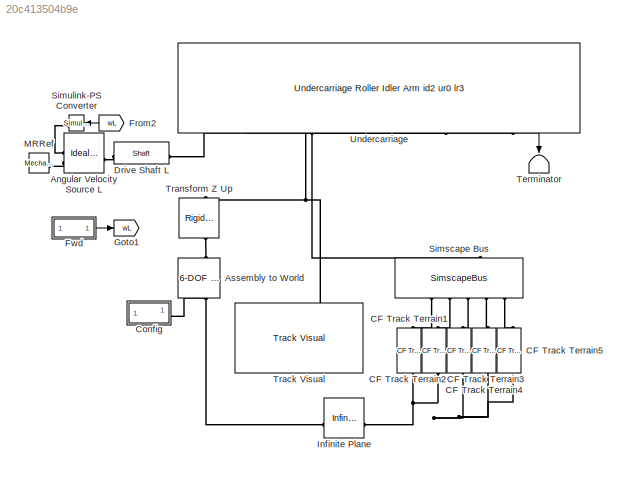
MODEL slx_20c413504b9e
KIND model
CONFIG AbsTol = 1e-3
CONFIG EnableMultiTasking = on
CONFIG SolverName = VariableStepAuto
BLOCK [Reference] Angular Velocity Source L  REF=fl_lib/Mechanical/Mechanical Sources/Ideal Angular
Velocity Source
  SourceBlock = fl_lib/Mechanical/Mechanical Sources/Ideal Angular\nVelocity Source
  SourceType = Ideal Angular\nVelocity Source
BLOCK [Reference] Assembly to World  REF=sm_lib/Joints/6-DOF Joint
  NameLocation = right
  SourceBlock = sm_lib/Joints/6-DOF Joint
  SourceType = 6-DOF Joint
BLOCK [Reference] CF Track Terrain1  REF=sm_trackV_lib_terrain_contact_elem/CF Track Terrain
  SourceBlock = sm_trackV_lib_terrain_contact_elem/CF Track Terrain
  SourceType = Contact Force, Track Segment to Terrain
BLOCK [Reference] CF Track Terrain2  REF=sm_trackV_lib_terrain_contact_elem/CF Track Terrain
  SourceBlock = sm_trackV_lib_terrain_contact_elem/CF Track Terrain
  SourceType = Contact Force, Track Segment to Terrain
BLOCK [Reference] CF Track Terrain3  REF=sm_trackV_lib_terrain_contact_elem/CF Track Terrain
  SourceBlock = sm_trackV_lib_terrain_contact_elem/CF Track Terrain
  SourceType = Contact Force, Track Segment to Terrain
BLOCK [Reference] CF Track Terrain4  REF=sm_trackV_lib_terrain_contact_elem/CF Track Terrain
  SourceBlock = sm_trackV_lib_terrain_contact_elem/CF Track Terrain
  SourceType = Contact Force, Track Segment to Terrain
BLOCK [Reference] CF Track Terrain5  REF=sm_trackV_lib_terrain_contact_elem/CF Track Terrain
  SourceBlock = sm_trackV_lib_terrain_contact_elem/CF Track Terrain
  SourceType = Contact Force, Track Segment to Terrain
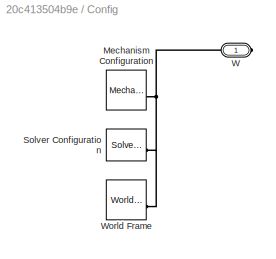
BLOCK [SubSystem] Config
BLOCK [Reference] Config/Mechanism Configuration  REF=sm_lib/Utilities/Mechanism
Configuration
  SourceBlock = sm_lib/Utilities/Mechanism\nConfiguration
  SourceType = Mechanism\nConfiguration
BLOCK [Reference] Config/Solver Configuration  REF=nesl_utility/Solver
Configuration
  SourceBlock = nesl_utility/Solver\nConfiguration
  SourceType = Solver\nConfiguration
BLOCK [PMIOPort] Config/W
  Side = Right
BLOCK [Reference] Config/World Frame  REF=sm_lib/Frames and
Transforms/World Frame
  SourceBlock = sm_lib/Frames and\nTransforms/World Frame
  SourceType = World Frame
BLOCK [Reference] Drive Shaft L  REF=sm_trackV_lib_chain_underc_elem/Shaft
  SourceBlock = sm_trackV_lib_chain_underc_elem/Shaft
  SourceType = Driveshaft
BLOCK [From] From2
  GotoTag = wL
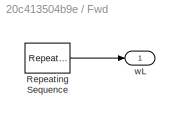
BLOCK [SubSystem] Fwd
  VariantControl = Fwd
BLOCK [Reference] Fwd/Repeating Sequence  REF=simulink/Sources/Repeating
Sequence
  SourceBlock = simulink/Sources/Repeating\nSequence
  SourceType = Repeating table
BLOCK [Outport] Fwd/wL
BLOCK [Goto] Goto1
  GotoTag = wL
BLOCK [Reference] Infinite Plane  REF=sm_lib/Curves and Surfaces/Infinite Plane
  SourceBlock = sm_lib/Curves and Surfaces/Infinite Plane
  SourceType = Infinite Plane
BLOCK [Reference] MRRef  REF=fl_lib/Mechanical/Rotational Elements/Mechanical
Rotational Reference
  SourceBlock = fl_lib/Mechanical/Rotational Elements/Mechanical\nRotational Reference
  SourceType = Mechanical\nRotational Reference
BLOCK [SimscapeBus] Simscape Bus
  ConnectionType = Bus: CBO_Roller5
  HierarchyStrings = P1;P2;P3;P4;P5
  NameLocation = right
BLOCK [Reference] Simulink-PS Converter  REF=nesl_utility/Simulink-PS
Converter
  NameLocation = top
  SourceBlock = nesl_utility/Simulink-PS\nConverter
  SourceType = Simulink-PS\nConverter
BLOCK [Terminator] Terminator
  NameLocation = left
BLOCK [Reference] Track Visual  REF=sm_rollerV_lib_underc_elem/Track Visual
  SourceBlock = sm_rollerV_lib_underc_elem/Track Visual
  SourceType = Track Mass and Visual Element
BLOCK [Reference] Transform Z Up  REF=sm_lib/Frames and
Transforms/Rigid
Transform
  NameLocation = right
  SourceBlock = sm_lib/Frames and\nTransforms/Rigid\nTransform
  SourceType = Rigid\nTransform
BLOCK [Reference] Undercarriage  REF=sm_rollerV_lib_underc_idlerArm_i2u0l3/Undercarriage Roller
Idler Arm
id2 ur0 lr3
  NameLocation = right
  SourceBlock = sm_rollerV_lib_underc_idlerArm_i2u0l3/Undercarriage Roller\nIdler Arm\nid2 ur0 lr3
  SourceType = Undercarriage with Roller Ground Contact (Point Cloud)
LINE From2:1 -> Simulink-PS Converter:1
LINE Fwd/Repeating Sequence:1 -> Fwd/wL:1
LINE Fwd:1 -> Goto1:1
LINE Undercarriage:1 -> Terminator:1
PLINE Angular Velocity Source L:LConn1 -- Drive Shaft L:LConn1
PLINE Angular Velocity Source L:RConn1 -- Simulink-PS Converter:RConn1
PLINE Angular Velocity Source L:RConn2 -- MRRef:LConn1
PNET net1: Assembly to World:LConn1 -- Config:RConn1 -- Infinite Plane:LConn1
PLINE Assembly to World:RConn1 -- Transform Z Up:LConn1
PNET net2: CF Track Terrain1:LConn1 -- CF Track Terrain2:LConn1 -- CF Track Terrain3:LConn1 -- CF Track Terrain4:LConn1 -- CF Track Terrain5:LConn1 -- Infinite Plane:RConn1
PLINE CF Track Terrain1:RConn1 -- Simscape Bus:LConn1
PLINE CF Track Terrain2:RConn1 -- Simscape Bus:LConn2
PLINE CF Track Terrain3:RConn1 -- Simscape Bus:LConn3
PLINE CF Track Terrain4:RConn1 -- Simscape Bus:LConn4
PLINE CF Track Terrain5:RConn1 -- Simscape Bus:LConn5
PNET net3: Config/Mechanism Configuration:RConn1 -- Config/Solver Configuration:RConn1 -- Config/W:RConn1 -- Config/World Frame:RConn1
PLINE Drive Shaft L:RConn1 -- Undercarriage:RConn4
PLINE Simscape Bus:RConn1 -- Undercarriage:RConn1
PNET net4: Track Visual:LConn1 -- Transform Z Up:RConn1 -- Undercarriage:RConn3
note: PNET lines group multi-terminal physical nets as a canonical sorted terminal list (undirected conserving connections); 2-terminal nets keep the pairwise PLINE form
